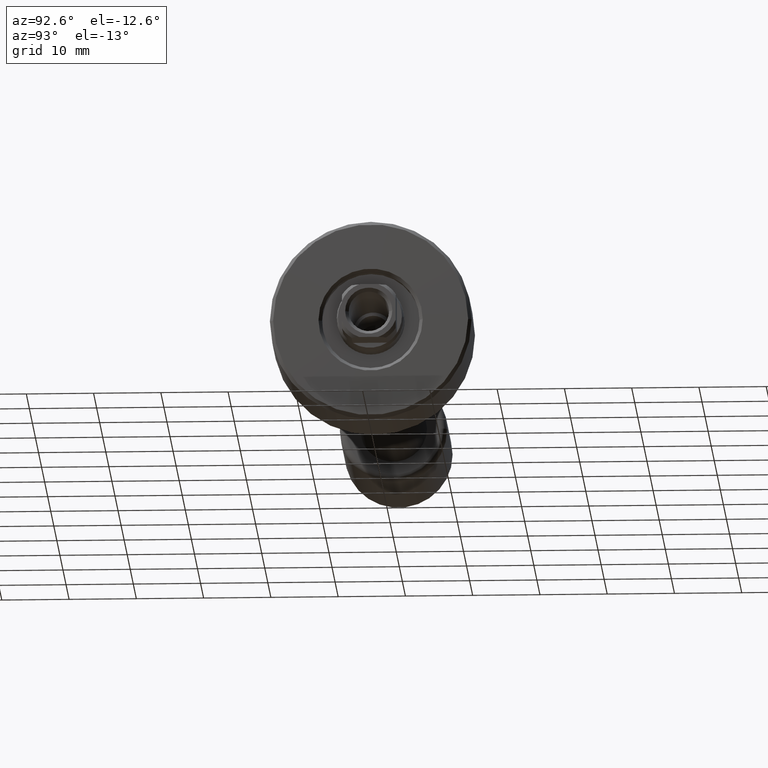
[diagram: clean part render]
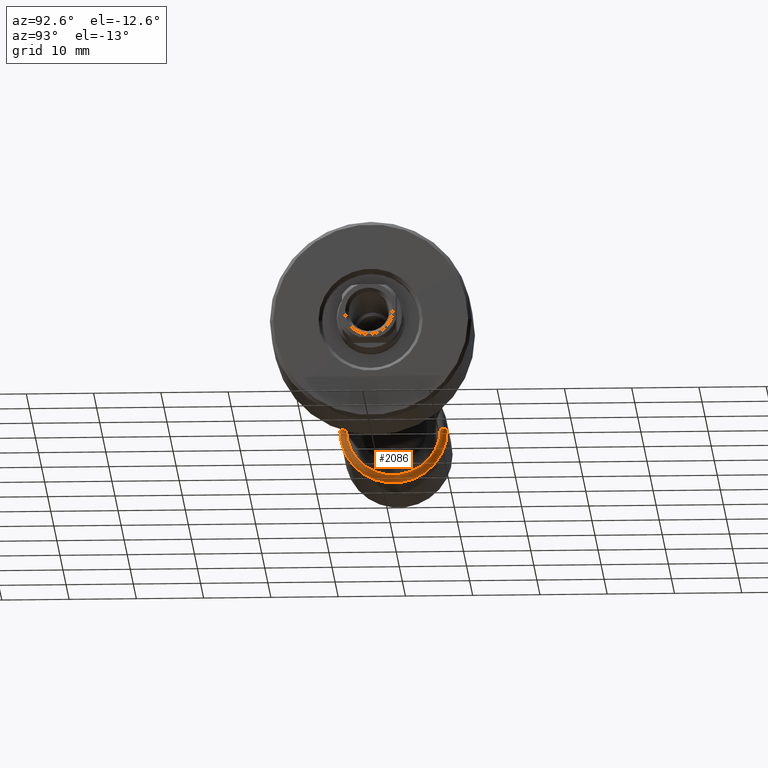
[diagram: same view with one face highlighted and labeled with its STEP entity id]
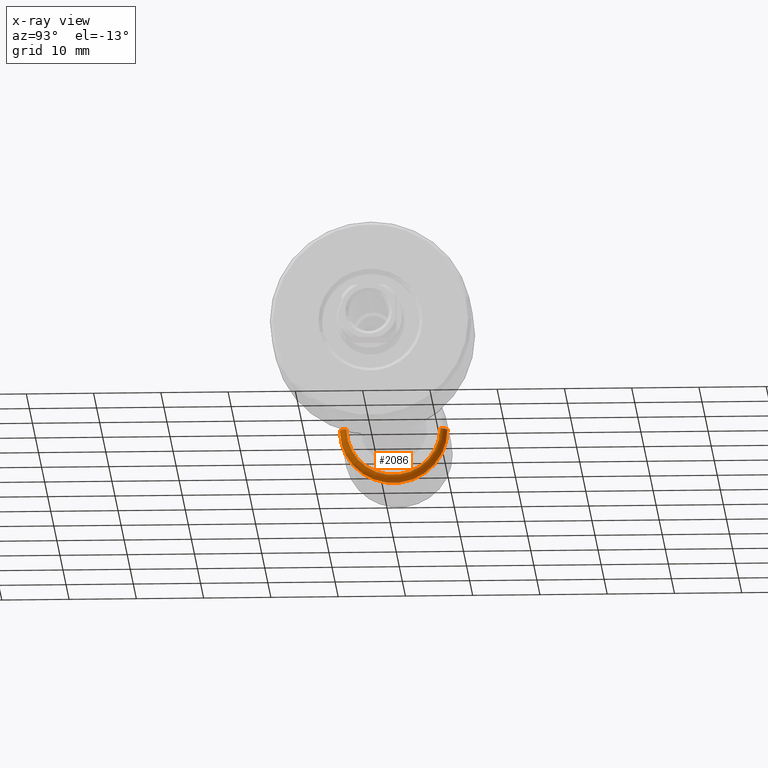
[diagram: x-ray of the same camera — body ghosted, the highlighted face saturated]
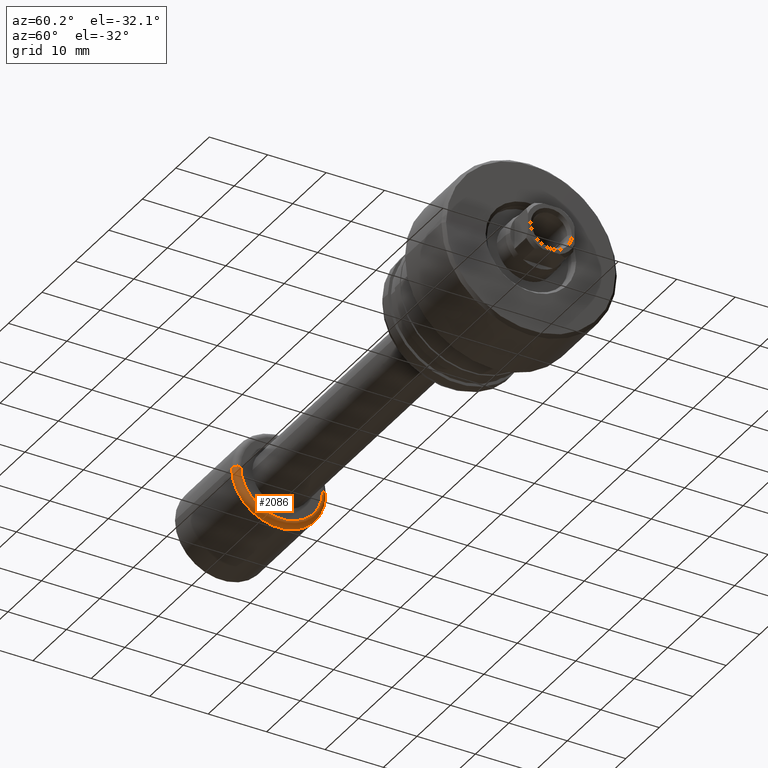
[diagram: same view with one face highlighted and labeled with its STEP entity id]
A machine part, auxiliary view. The second image highlights one B-rep face of the part: STEP entity #2086.
The next image is the same camera in x-ray: the body ghosted, the highlighted face saturated — about 0% of this face is hidden behind the body in this view.
A second angle (auxiliary view) of the same face is appended — the face is thin or edge-on in the first view.
In plain terms, the highlighted toroidal blend (fillet) surface has major radius 7 mm and minor (blend) radius 1 mm.
Its self-contained STEP definition (entity closure, byte-faithful):
#22 = ORIENTED_EDGE ( 'NONE', *, *, #1857, .T. ) ;
#33 = DIRECTION ( 'NONE',  ( 0.000000000000000000, -1.000000000000000000, 0.000000000000000000 ) ) ;
#86 = AXIS2_PLACEMENT_3D ( 'NONE', #2108, #559, #33 ) ;
#98 = CARTESIAN_POINT ( 'NONE',  ( 19.40000000000006253, 2.074912104813994331E-16, 0.000000000000000000 ) ) ;
#227 = DIRECTION ( 'NONE',  ( -1.000000000000000000, -1.069542322069065801E-17, -0.000000000000000000 ) ) ;
#272 = CARTESIAN_POINT ( 'NONE',  ( 18.40000000000006253, 7.999999999999996447, 9.797174393178821713E-16 ) ) ;
#278 = DIRECTION ( 'NONE',  ( -1.000000000000000000, 0.000000000000000000, 0.000000000000000000 ) ) ;
#312 = CARTESIAN_POINT ( 'NONE',  ( 19.40000000000006253, -6.999999999999996447, 0.000000000000000000 ) ) ;
#419 = VERTEX_POINT ( 'NONE', #312 ) ;
#531 = DIRECTION ( 'NONE',  ( 1.309811581274509052E-33, -1.224646799147353207E-16, 1.000000000000000000 ) ) ;
#546 = DIRECTION ( 'NONE',  ( 0.000000000000000000, -1.000000000000000000, -1.224646799147353454E-16 ) ) ;
#559 = DIRECTION ( 'NONE',  ( -1.000000000000000000, -1.069542322069065801E-17, -0.000000000000000000 ) ) ;
#562 = AXIS2_PLACEMENT_3D ( 'NONE', #2028, #531, #546 ) ;
#610 = CARTESIAN_POINT ( 'NONE',  ( 18.40000000000006253, -6.999999999999996447, 0.000000000000000000 ) ) ;
#611 = AXIS2_PLACEMENT_3D ( 'NONE', #610, #1689, #278 ) ;
#653 = CARTESIAN_POINT ( 'NONE',  ( 19.40000000000006253, 6.999999999999996447, 9.184850993605144000E-16 ) ) ;
#806 = VERTEX_POINT ( 'NONE', #272 ) ;
#855 = DIRECTION ( 'NONE',  ( 1.069542322069065801E-17, -1.000000000000000000, 0.000000000000000000 ) ) ;
#875 = ORIENTED_EDGE ( 'NONE', *, *, #2017, .T. ) ;
#898 = EDGE_LOOP ( 'NONE', ( #1850, #22, #875, #2186 ) ) ;
#924 = EDGE_CURVE ( 'NONE', #1138, #806, #2296, .T. ) ;
#925 = AXIS2_PLACEMENT_3D ( 'NONE', #1239, #227, #855 ) ;
#1001 = CARTESIAN_POINT ( 'NONE',  ( 18.40000000000006253, -7.999999999999996447, 0.000000000000000000 ) ) ;
#1037 = DIRECTION ( 'NONE',  ( -1.000000000000000000, -1.069542322069065801E-17, -0.000000000000000000 ) ) ;
#1138 = VERTEX_POINT ( 'NONE', #653 ) ;
#1239 = CARTESIAN_POINT ( 'NONE',  ( 18.40000000000006253, 0.000000000000000000, 0.000000000000000000 ) ) ;
#1363 = CIRCLE ( 'NONE', #611, 1.000000000000000888 ) ;
#1436 = EDGE_CURVE ( 'NONE', #806, #2210, #1909, .T. ) ;
#1689 = DIRECTION ( 'NONE',  ( 0.000000000000000000, 0.000000000000000000, -1.000000000000000000 ) ) ;
#1786 = DIRECTION ( 'NONE',  ( 0.000000000000000000, -1.000000000000000000, 0.000000000000000000 ) ) ;
#1850 = ORIENTED_EDGE ( 'NONE', *, *, #924, .F. ) ;
#1857 = EDGE_CURVE ( 'NONE', #1138, #419, #2266, .T. ) ;
#1909 = CIRCLE ( 'NONE', #86, 7.999999999999996447 ) ;
#1947 = TOROIDAL_SURFACE ( 'NONE', #925, 6.999999999999996447, 1.000000000000000444 ) ;
#2017 = EDGE_CURVE ( 'NONE', #419, #2210, #1363, .T. ) ;
#2028 = CARTESIAN_POINT ( 'NONE',  ( 18.40000000000006253, 6.999999999999996447, 8.572527594031468259E-16 ) ) ;
#2086 = ADVANCED_FACE ( 'NONE', ( #2331 ), #1947, .T. ) ;
#2108 = CARTESIAN_POINT ( 'NONE',  ( 18.40000000000006253, 1.967957872607087643E-16, 0.000000000000000000 ) ) ;
#2186 = ORIENTED_EDGE ( 'NONE', *, *, #1436, .F. ) ;
#2210 = VERTEX_POINT ( 'NONE', #1001 ) ;
#2266 = CIRCLE ( 'NONE', #2422, 6.999999999999996447 ) ;
#2296 = CIRCLE ( 'NONE', #562, 1.000000000000000000 ) ;
#2331 = FACE_OUTER_BOUND ( 'NONE', #898, .T. ) ;
#2422 = AXIS2_PLACEMENT_3D ( 'NONE', #98, #1037, #1786 ) ;